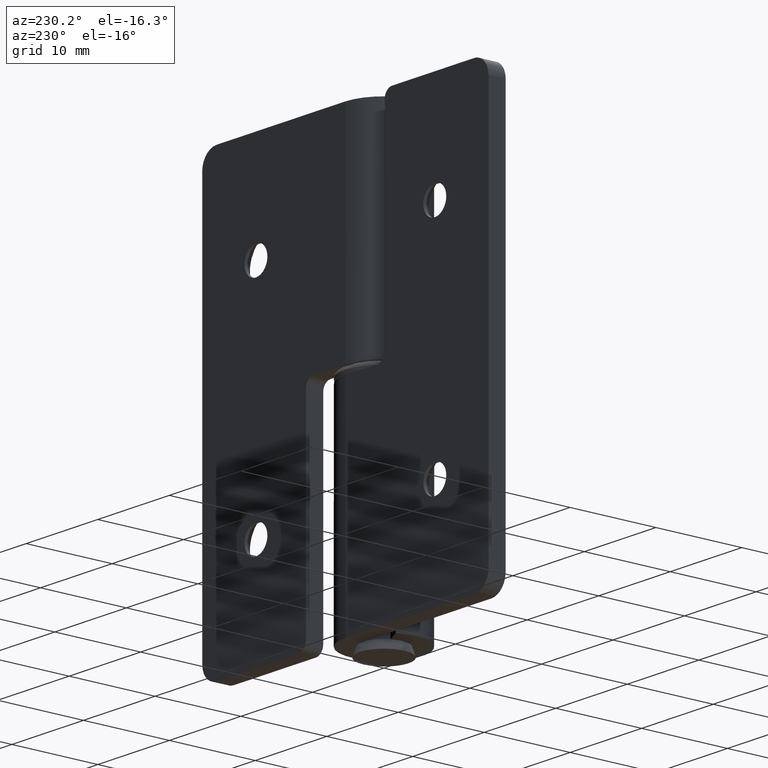
[diagram: clean part render]
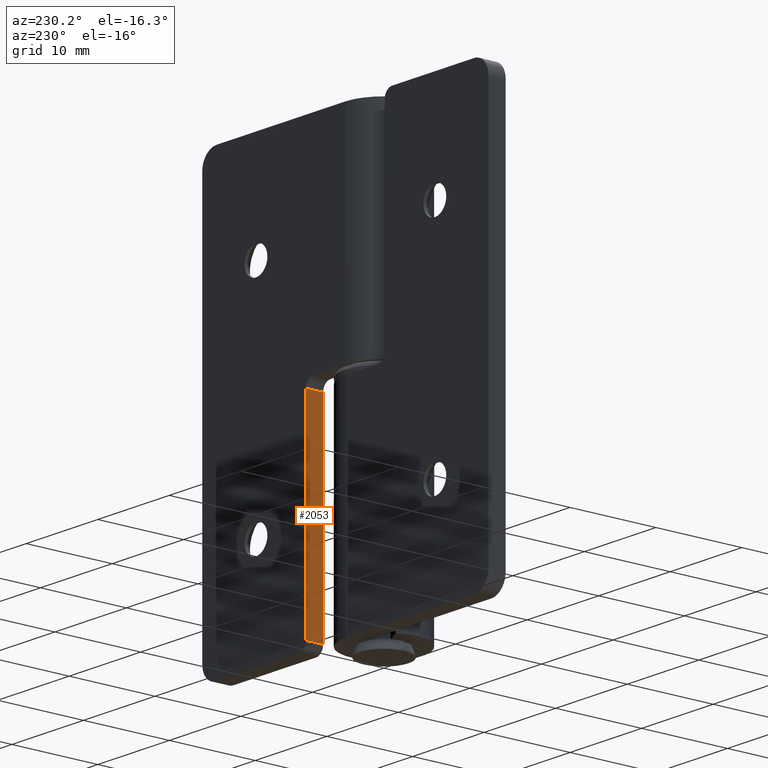
[diagram: same view with one face highlighted and labeled with its STEP entity id]
A machine part, auxiliary view. The second image highlights one B-rep face of the part: STEP entity #2053.
In plain terms, the highlighted face is a freeform B-spline surface patch.
Its self-contained STEP definition (entity closure, byte-faithful):
#1806=CARTESIAN_POINT('',(5.500000000000000,2.499999999982275,24.500000000000000));
#1807=VERTEX_POINT('',#1806);
#1828=CARTESIAN_POINT('',(5.500000000000000,4.500000000000000,24.500000000000000));
#1829=VERTEX_POINT('',#1828);
#1843=CARTESIAN_POINT('',(5.500000000000000,2.499999999982275,24.500000000000000));
#1844=CARTESIAN_POINT('',(5.500000000000000,4.500000000000000,24.500000000000000));
#1845=QUASI_UNIFORM_CURVE('',1,(#1843,#1844),.UNSPECIFIED.,.F.,.U.);
#1846=EDGE_CURVE('',#1807,#1829,#1845,.T.);
#1865=CARTESIAN_POINT('',(5.500000000000000,2.499999999982275,1.0));
#1866=VERTEX_POINT('',#1865);
#1882=CARTESIAN_POINT('',(5.500000000000000,4.500000000000000,1.0));
#1883=VERTEX_POINT('',#1882);
#1884=CARTESIAN_POINT('',(5.500000000000000,4.500000000000000,1.0));
#1885=CARTESIAN_POINT('',(5.500000000000000,2.499999999982275,1.0));
#1886=QUASI_UNIFORM_CURVE('',1,(#1884,#1885),.UNSPECIFIED.,.F.,.U.);
#1887=EDGE_CURVE('',#1883,#1866,#1886,.T.);
#2034=CARTESIAN_POINT('',(5.500000000000000,2.400100003857777,-0.173824954452438));
#2035=CARTESIAN_POINT('',(5.500000000000000,2.400100003857777,25.673825584771560));
#2036=CARTESIAN_POINT('',(5.500000000000000,4.599900049768677,-0.173824954452438));
#2037=CARTESIAN_POINT('',(5.500000000000000,4.599900049768677,25.673825584771560));
#2038=B_SPLINE_SURFACE_WITH_KNOTS('',1,1,((#2034,#2036),(#2035,#2037)),.UNSPECIFIED.,.F.,.F.,.U.,(2,2),(2,2),(0.0,25.847650539223999),(0.0,2.199800045910900),.UNSPECIFIED.);
#2039=CARTESIAN_POINT('',(5.500000000000000,4.500000000000000,1.0));
#2040=CARTESIAN_POINT('',(5.500000000000000,4.500000000000000,24.500000000000000));
#2041=QUASI_UNIFORM_CURVE('',1,(#2039,#2040),.UNSPECIFIED.,.F.,.U.);
#2042=EDGE_CURVE('',#1883,#1829,#2041,.T.);
#2043=ORIENTED_EDGE('',*,*,#2042,.F.);
#2044=ORIENTED_EDGE('',*,*,#1887,.T.);
#2045=CARTESIAN_POINT('',(5.500000000000000,2.499999999982275,1.0));
#2046=CARTESIAN_POINT('',(5.500000000000000,2.499999999982275,24.500000000000000));
#2047=QUASI_UNIFORM_CURVE('',1,(#2045,#2046),.UNSPECIFIED.,.F.,.U.);
#2048=EDGE_CURVE('',#1866,#1807,#2047,.T.);
#2049=ORIENTED_EDGE('',*,*,#2048,.T.);
#2050=ORIENTED_EDGE('',*,*,#1846,.T.);
#2051=EDGE_LOOP('',(#2043,#2044,#2049,#2050));
#2052=FACE_OUTER_BOUND('',#2051,.T.);
#2053=ADVANCED_FACE('',(#2052),#2038,.T.);